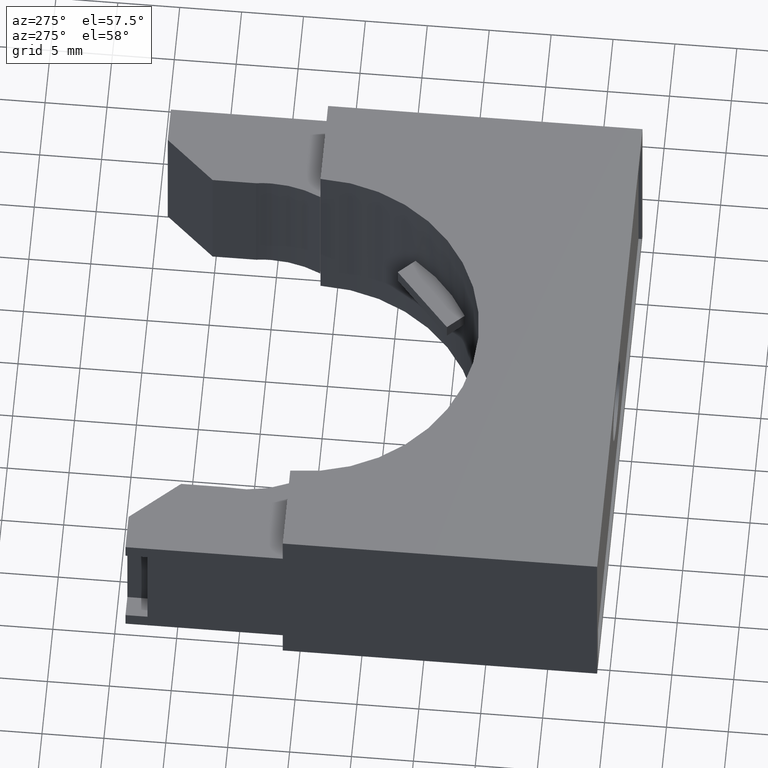
[diagram: clean part render]
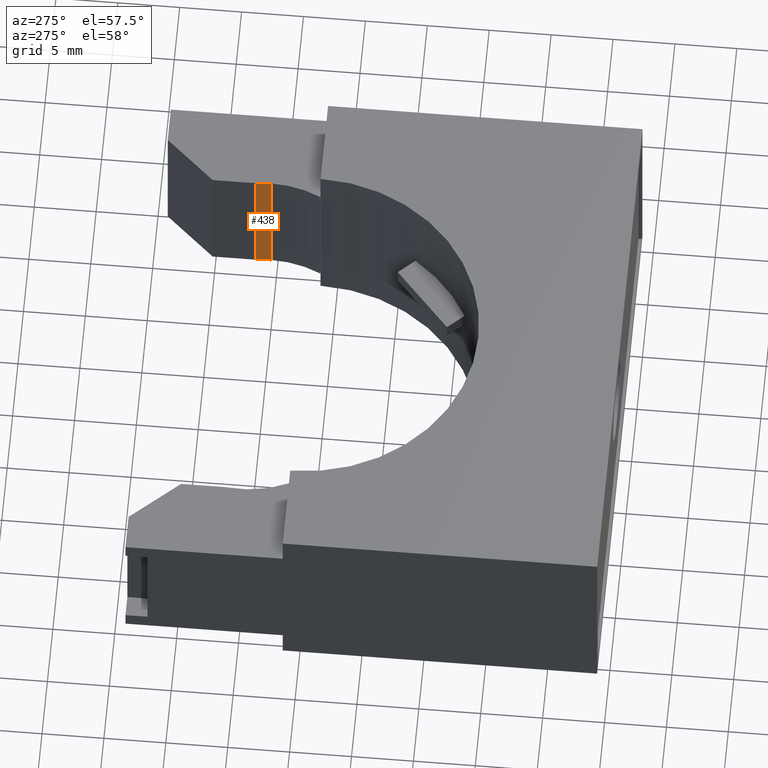
[diagram: same view with one face highlighted and labeled with its STEP entity id]
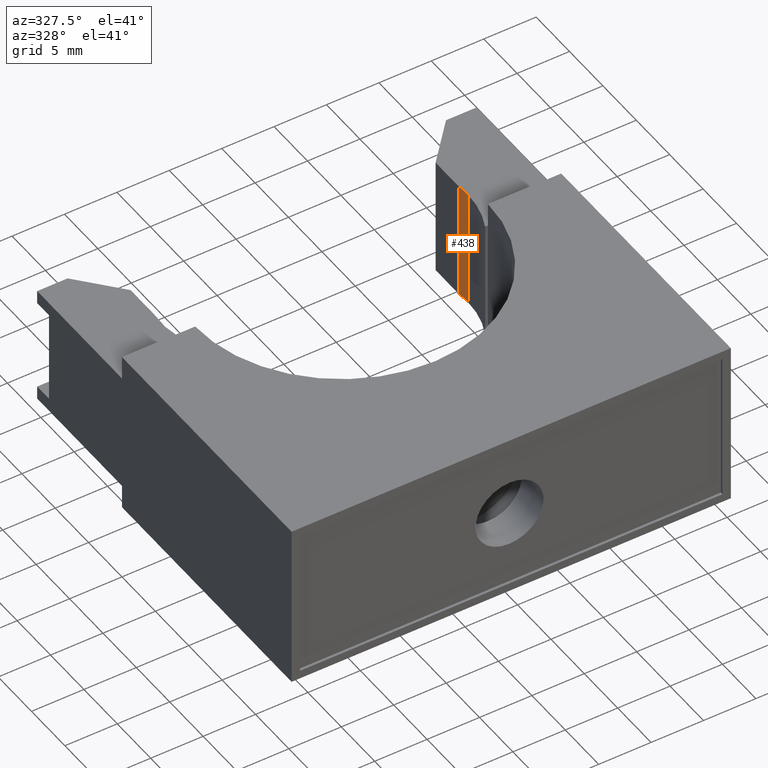
[diagram: same view with one face highlighted and labeled with its STEP entity id]
A machine part, auxiliary view. The second image highlights one B-rep face of the part: STEP entity #438.
A second angle (auxiliary view) of the same face is appended — the face is thin or edge-on in the first view.
In plain terms, the highlighted cylindrical surface (partial cylindrical patch) has radius 9.1361 mm, axis along (-0, -0, 1).
Its self-contained STEP definition (entity closure, byte-faithful):
#380 = EDGE_LOOP ( 'NONE', ( #439, #443, #473, #476 ) ) ;
#438 = ADVANCED_FACE ( 'NONE', ( #1355 ), #1353, .F. ) ;
#439 = ORIENTED_EDGE ( 'NONE', *, *, #440, .T. ) ;
#440 = EDGE_CURVE ( 'NONE', #441, #442, #1349, .T. ) ;
#441 = VERTEX_POINT ( 'NONE', #1344 ) ;
#442 = VERTEX_POINT ( 'NONE', #1343 ) ;
#443 = ORIENTED_EDGE ( 'NONE', *, *, #444, .T. ) ;
#444 = EDGE_CURVE ( 'NONE', #442, #445, #1342, .T. ) ;
#445 = VERTEX_POINT ( 'NONE', #1338 ) ;
#473 = ORIENTED_EDGE ( 'NONE', *, *, #474, .T. ) ;
#474 = EDGE_CURVE ( 'NONE', #445, #475, #1171, .T. ) ;
#475 = VERTEX_POINT ( 'NONE', #1167 ) ;
#476 = ORIENTED_EDGE ( 'NONE', *, *, #477, .F. ) ;
#477 = EDGE_CURVE ( 'NONE', #441, #475, #1166, .T. ) ;
#1163 = DIRECTION ( 'NONE',  ( -0.0000000000000000000, -0.0000000000000000000, 1.000000000000000000 ) ) ;
#1164 = VECTOR ( 'NONE', #1163, 39.37007874015748100 ) ;
#1165 = CARTESIAN_POINT ( 'NONE',  ( 0.5728124999999998400, 0.4571875000000000800, 0.0000000000000000000 ) ) ;
#1166 = LINE ( 'NONE', #1165, #1164 ) ;
#1167 = CARTESIAN_POINT ( 'NONE',  ( 0.5728124999999998400, 0.4571875000000000800, 0.5404500000000002100 ) ) ;
#1168 = DIRECTION ( 'NONE',  ( -1.000000000000000000, 0.0000000000000000000, 0.0000000000000000000 ) ) ;
#1169 = DIRECTION ( 'NONE',  ( 0.0000000000000000000, 0.0000000000000000000, 1.000000000000000000 ) ) ;
#1170 = AXIS2_PLACEMENT_3D ( 'NONE', #1205, #1169, #1168 ) ;
#1171 = CIRCLE ( 'NONE', #1170, 0.3596874999999999400 ) ;
#1205 = CARTESIAN_POINT ( 'NONE',  ( 0.2163666832557222800, 0.4090057878909964000, 0.5404500000000002100 ) ) ;
#1338 = CARTESIAN_POINT ( 'NONE',  ( 0.5760541832557222200, 0.4090057878909964000, 0.5404500000000002100 ) ) ;
#1339 = DIRECTION ( 'NONE',  ( -0.0000000000000000000, -0.0000000000000000000, 1.000000000000000000 ) ) ;
#1340 = VECTOR ( 'NONE', #1339, 39.37007874015748100 ) ;
#1341 = CARTESIAN_POINT ( 'NONE',  ( 0.5760541832557222200, 0.4090057878909964000, 0.0000000000000000000 ) ) ;
#1342 = LINE ( 'NONE', #1341, #1340 ) ;
#1343 = CARTESIAN_POINT ( 'NONE',  ( 0.5760541832557222200, 0.4090057878909964000, 0.08954999999999975500 ) ) ;
#1344 = CARTESIAN_POINT ( 'NONE',  ( 0.5728124999999998400, 0.4571875000000000800, 0.08954999999999975500 ) ) ;
#1345 = DIRECTION ( 'NONE',  ( 0.0000000000000000000, -1.000000000000000000, -9.493824478416207600E-017 ) ) ;
#1346 = DIRECTION ( 'NONE',  ( -0.0000000000000000000, 1.024442997624099100E-016, -1.000000000000000000 ) ) ;
#1347 = CARTESIAN_POINT ( 'NONE',  ( 0.2163666832557222800, 0.4090057878909964000, 0.08954999999999975500 ) ) ;
#1348 = AXIS2_PLACEMENT_3D ( 'NONE', #1347, #1346, #1345 ) ;
#1349 = CIRCLE ( 'NONE', #1348, 0.3596874999999999400 ) ;
#1350 = DIRECTION ( 'NONE',  ( 1.000000000000000000, 0.0000000000000000000, 0.0000000000000000000 ) ) ;
#1351 = DIRECTION ( 'NONE',  ( -0.0000000000000000000, -0.0000000000000000000, 1.000000000000000000 ) ) ;
#1352 = AXIS2_PLACEMENT_3D ( 'NONE', #1354, #1351, #1350 ) ;
#1353 = CYLINDRICAL_SURFACE ( 'NONE', #1352, 0.3596874999999999400 ) ;
#1354 = CARTESIAN_POINT ( 'NONE',  ( 0.2163666832557222800, 0.4090057878909964000, 0.0000000000000000000 ) ) ;
#1355 = FACE_OUTER_BOUND ( 'NONE', #380, .T. ) ;